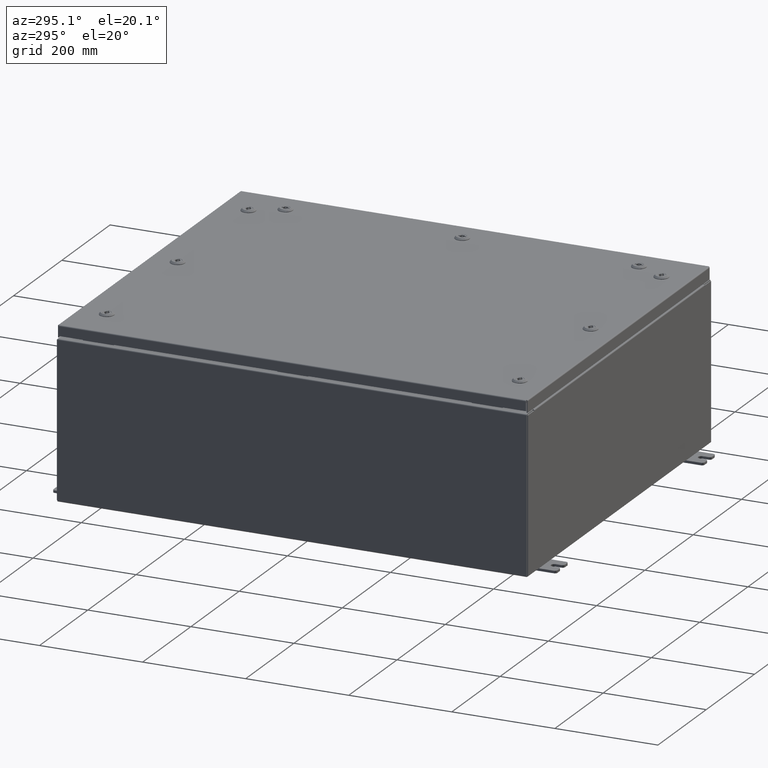
[diagram: clean part render]
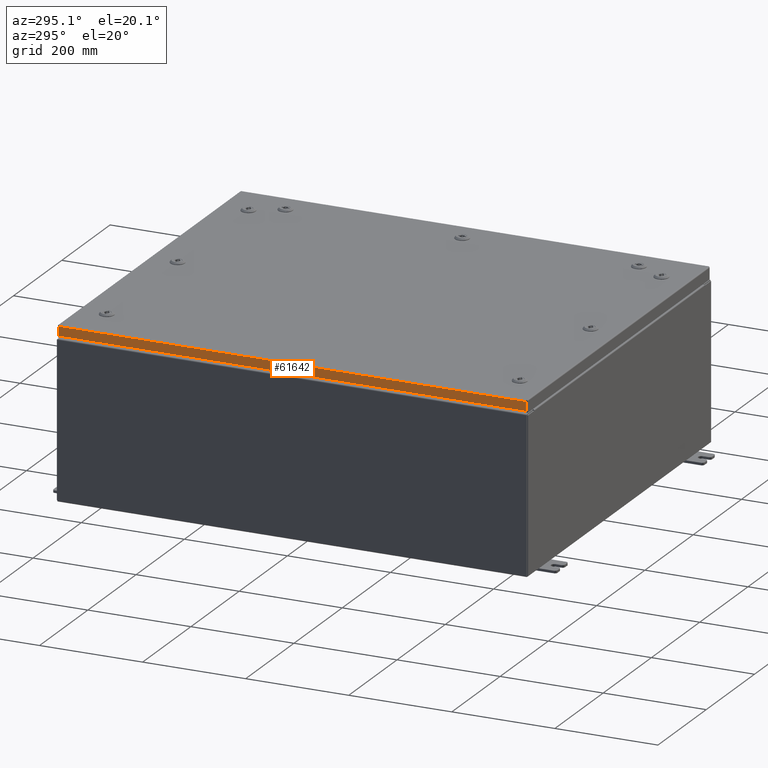
[diagram: same view with one face highlighted and labeled with its STEP entity id]
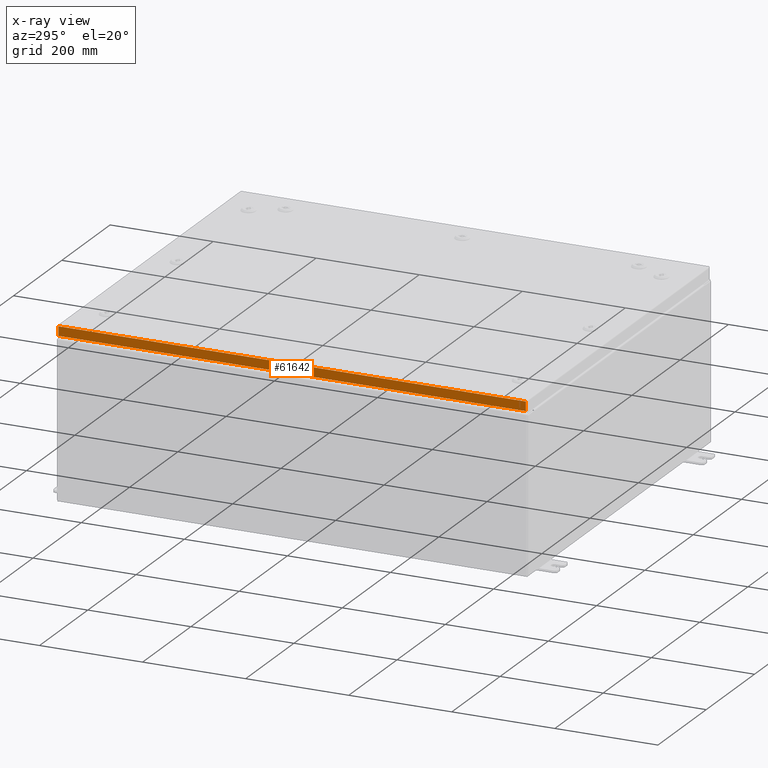
[diagram: x-ray of the same camera — body ghosted, the highlighted face saturated]
A machine part, auxiliary view. The second image highlights one B-rep face of the part: STEP entity #61642.
The next image is the same camera in x-ray: the body ghosted, the highlighted face saturated — about 0% of this face is hidden behind the body in this view.
In plain terms, the highlighted planar face has unit normal (1, 0, -0).
Its self-contained STEP definition (entity closure, byte-faithful):
#3521 = EDGE_CURVE ( 'NONE', #40761, #12936, #3539, .T. ) ;
#3539 = LINE ( 'NONE', #23223, #56068 ) ;
#6044 = DIRECTION ( 'NONE',  ( -3.034122441942816500E-015, 6.982962677686267500E-015, -1.000000000000000000 ) ) ;
#7123 = EDGE_CURVE ( 'NONE', #40761, #12694, #21573, .T. ) ;
#8082 = VECTOR ( 'NONE', #17489, 39.37007874015748100 ) ;
#9488 = EDGE_CURVE ( 'NONE', #65074, #12936, #29372, .T. ) ;
#10075 = DIRECTION ( 'NONE',  ( -3.034122441942816500E-015, 0.0000000000000000000, -1.000000000000000000 ) ) ;
#10642 = EDGE_CURVE ( 'NONE', #12694, #65074, #21338, .T. ) ;
#12694 = VERTEX_POINT ( 'NONE', #24615 ) ;
#12936 = VERTEX_POINT ( 'NONE', #18610 ) ;
#17489 = DIRECTION ( 'NONE',  ( 3.696729780873900900E-031, -1.000000000000000000, -1.089726516288665400E-045 ) ) ;
#18610 = CARTESIAN_POINT ( 'NONE',  ( -14.93750000000000400, 17.84865786437627500, -0.7949999999999954900 ) ) ;
#19728 = ORIENTED_EDGE ( 'NONE', *, *, #3521, .T. ) ;
#21338 = LINE ( 'NONE', #51428, #46829 ) ;
#21573 = LINE ( 'NONE', #61076, #8082 ) ;
#22616 = ORIENTED_EDGE ( 'NONE', *, *, #7123, .F. ) ;
#23223 = CARTESIAN_POINT ( 'NONE',  ( -14.93750000000000200, 17.84865786437626800, 1.702195293462633700E-013 ) ) ;
#24615 = CARTESIAN_POINT ( 'NONE',  ( -14.93750000000000200, -17.84865786437626800, -0.08770000000000007000 ) ) ;
#29372 = LINE ( 'NONE', #65299, #54882 ) ;
#32344 = CARTESIAN_POINT ( 'NONE',  ( -14.93750000000000200, 17.84865786437626800, -0.08770000000000004200 ) ) ;
#35473 = CARTESIAN_POINT ( 'NONE',  ( -14.93750000000000200, -5.521990110180389400E-030, 4.558301763253240900E-014 ) ) ;
#35796 = AXIS2_PLACEMENT_3D ( 'NONE', #35473, #40631, #10075 ) ;
#39515 = FACE_OUTER_BOUND ( 'NONE', #59149, .T. ) ;
#40631 = DIRECTION ( 'NONE',  ( 1.000000000000000000, 3.696729780873900900E-031, -3.034122441942816500E-015 ) ) ;
#40761 = VERTEX_POINT ( 'NONE', #32344 ) ;
#46173 = CARTESIAN_POINT ( 'NONE',  ( -14.93750000000000400, -17.84865786437626800, -0.7949999999999996000 ) ) ;
#46338 = DIRECTION ( 'NONE',  ( -3.034122441942816500E-015, 6.982962677686267500E-015, -1.000000000000000000 ) ) ;
#46587 = ORIENTED_EDGE ( 'NONE', *, *, #10642, .F. ) ;
#46829 = VECTOR ( 'NONE', #46338, 39.37007874015748100 ) ;
#51428 = CARTESIAN_POINT ( 'NONE',  ( -14.93750000000000200, -17.84865786437627100, -0.07469999999999976700 ) ) ;
#54882 = VECTOR ( 'NONE', #61495, 39.37007874015748100 ) ;
#56068 = VECTOR ( 'NONE', #6044, 39.37007874015748100 ) ;
#59149 = EDGE_LOOP ( 'NONE', ( #22616, #19728, #64680, #46587 ) ) ;
#61076 = CARTESIAN_POINT ( 'NONE',  ( -14.93750000000000200, -17.93750000000000000, -0.08770000000000004200 ) ) ;
#61495 = DIRECTION ( 'NONE',  ( -4.379057701015054300E-047, 1.000000000000000000, 1.218385167906012900E-016 ) ) ;
#61642 = ADVANCED_FACE ( 'NONE', ( #39515 ), #65709, .F. ) ;
#64680 = ORIENTED_EDGE ( 'NONE', *, *, #9488, .F. ) ;
#65074 = VERTEX_POINT ( 'NONE', #46173 ) ;
#65299 = CARTESIAN_POINT ( 'NONE',  ( -14.93750000000000400, -17.93750000000000000, -0.7949999999999997100 ) ) ;
#65709 = PLANE ( 'NONE',  #35796 ) ;